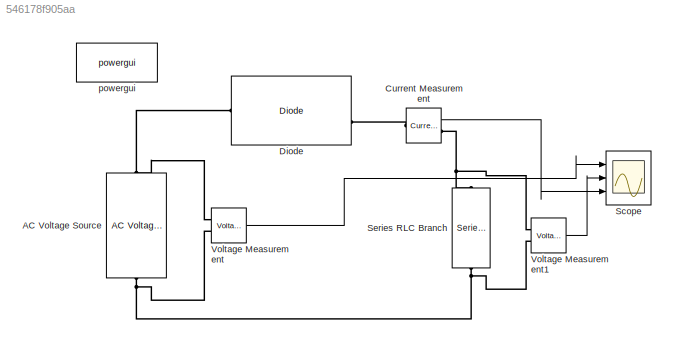
MODEL slx_546178f905aa
KIND model
CONFIG AbsTol = auto
CONFIG EnableMultiTasking = off
CONFIG FixedStep = auto
CONFIG MaxStep = 1e-4
CONFIG MinStep = auto
CONFIG RelTol = 1e-3
CONFIG SampleTimeConstraint = Unconstrained
CONFIG SolverName = ode23tb
CONFIG StartTime = 0.0
CONFIG StopTime = 0.1
BLOCK [Reference] AC Voltage Source  REF=spsACVoltageSourceLib/AC Voltage Source
  Ports = [0, 0, 0, 0, 0, 1, 1]
  SourceBlock = spsACVoltageSourceLib/AC Voltage Source
  SourceProductBaseCode = PS
  SourceType = AC Voltage Source
BLOCK [Reference] Current Measurement  REF=spsCurrentMeasurementLib/Current Measurement
  Ports = [0, 1, 0, 0, 0, 1, 1]
  SourceBlock = spsCurrentMeasurementLib/Current Measurement
  SourceProductBaseCode = PS
  SourceType = Current Measurement
  UserDataPersistent = on
BLOCK [Reference] Diode  REF=spsDiodeLib/Diode
  Ports = [0, 1, 0, 0, 0, 1, 1]
  SourceBlock = spsDiodeLib/Diode
  SourceProductBaseCode = PS
  SourceType = Diode
BLOCK [Scope] Scope
  Floating = off
  NumInputPorts = 3
  Ports = [3]
  ScopeSpecificationString = Simulink.scopes.TimeScopeBlockCfg('CurrentConfiguration', extmgr.ConfigurationSet(extmgr.Configuration('Core','General UI',true),extmgr.Configuration('Core','Source UI',true),extmgr.Configuration('Sources','WiredSimulink',true),extmgr.Configuration('Visuals','Time Domain',true,'SerializedDisplays',{struct('MinYLimReal','-124.99246','MaxYLimReal','124.99815','YLabelReal','','MinYLimMag','0','MaxYLi...<+2657ch>
BLOCK [Reference] Series RLC Branch  REF=spsSeriesRLCBranchLib/Series RLC Branch
  NameLocation = left
  Ports = [0, 0, 0, 0, 0, 1, 1]
  SourceBlock = spsSeriesRLCBranchLib/Series RLC Branch
  SourceProductBaseCode = PS
  SourceType = Series RLC Branch
BLOCK [Reference] Voltage Measurement  REF=spsVoltageMeasurementLib/Voltage Measurement
  Ports = [0, 1, 0, 0, 0, 2]
  SourceBlock = spsVoltageMeasurementLib/Voltage Measurement
  SourceProductBaseCode = PS
  SourceType = Voltage Measurement
  UserDataPersistent = on
BLOCK [Reference] Voltage Measurement1  REF=spsVoltageMeasurementLib/Voltage Measurement
  Ports = [0, 1, 0, 0, 0, 2]
  SourceBlock = spsVoltageMeasurementLib/Voltage Measurement
  SourceProductBaseCode = PS
  SourceType = Voltage Measurement
  UserDataPersistent = on
BLOCK [Reference] powergui  REF=spspowerguiLib/powergui
  Ports = []
  Priority = 1
  SourceBlock = spspowerguiLib/powergui
  SourceProductBaseCode = PS
  SourceType = PSB option menu block
LINE Current Measurement:1 -> Scope:3
LINE Voltage Measurement1:1 -> Scope:2
LINE Voltage Measurement:1 -> Scope:1
PNET net1: AC Voltage Source:LConn1 -- Series RLC Branch:RConn1 -- Voltage Measurement1:LConn2 -- Voltage Measurement:LConn2
PNET net2: AC Voltage Source:RConn1 -- Diode:LConn1 -- Voltage Measurement:LConn1
PLINE Current Measurement:LConn1 -- Diode:RConn1
PNET net3: Current Measurement:RConn1 -- Series RLC Branch:LConn1 -- Voltage Measurement1:LConn1
note: PNET lines group multi-terminal physical nets as a canonical sorted terminal list (undirected conserving connections); 2-terminal nets keep the pairwise PLINE form
